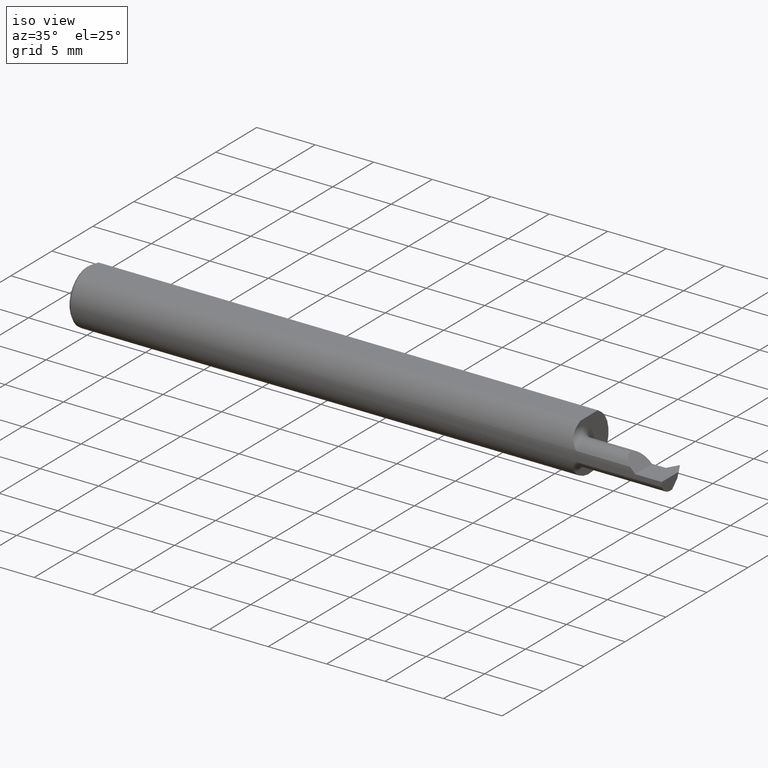
[diagram: clean part render]
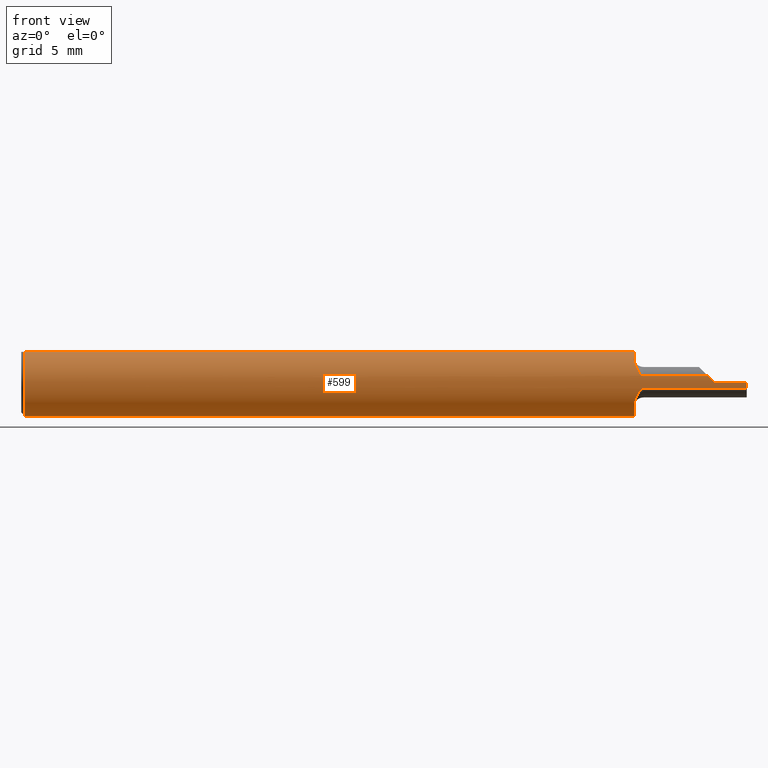
[diagram: tour spotlight — one face highlighted and labeled with its STEP entity id]
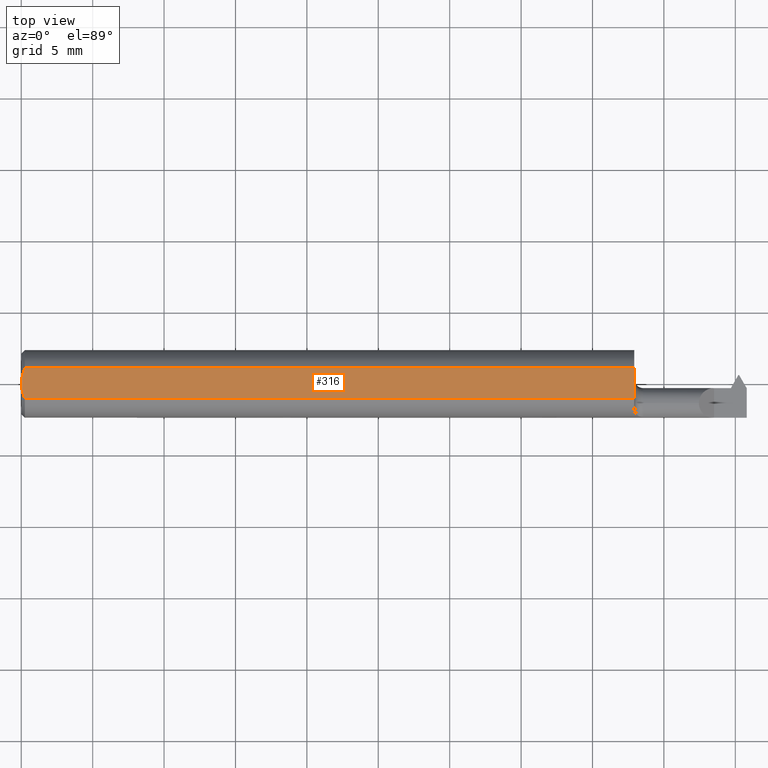
[diagram: tour spotlight — one face highlighted and labeled with its STEP entity id]
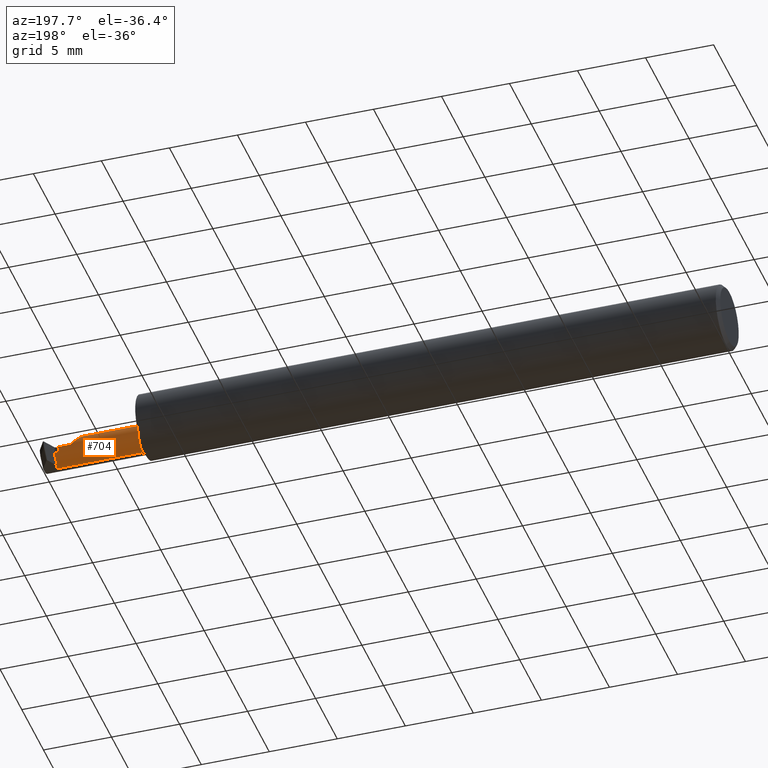
[diagram: tour spotlight — one face highlighted and labeled with its STEP entity id]
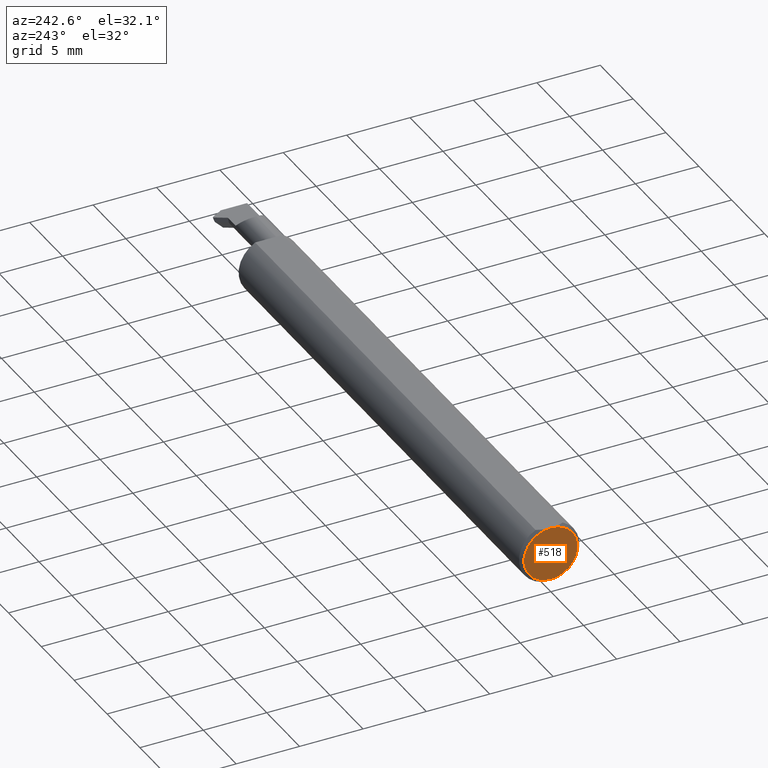
[diagram: tour spotlight — one face highlighted and labeled with its STEP entity id]
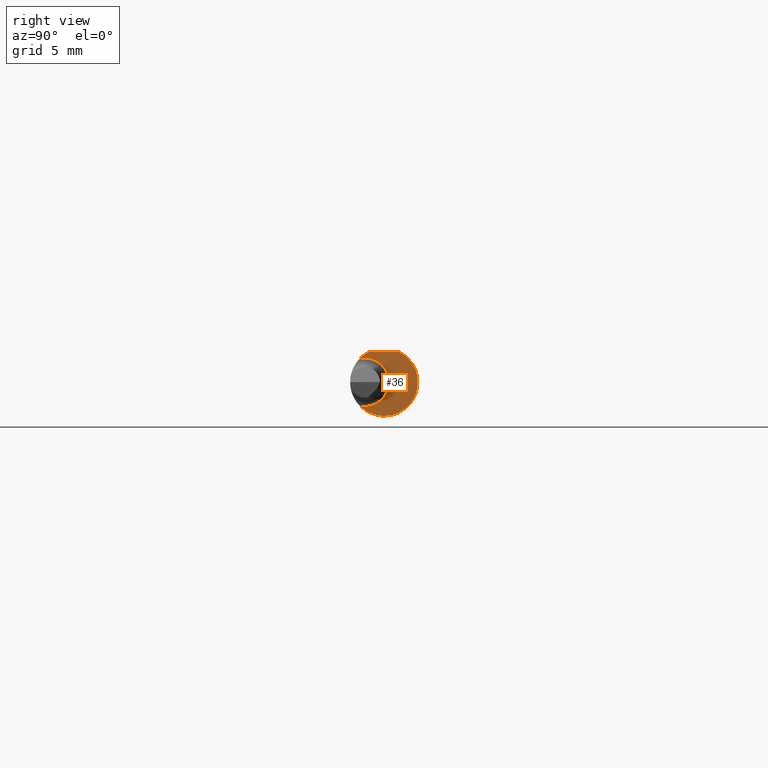
[diagram: tour spotlight — one face highlighted and labeled with its STEP entity id]
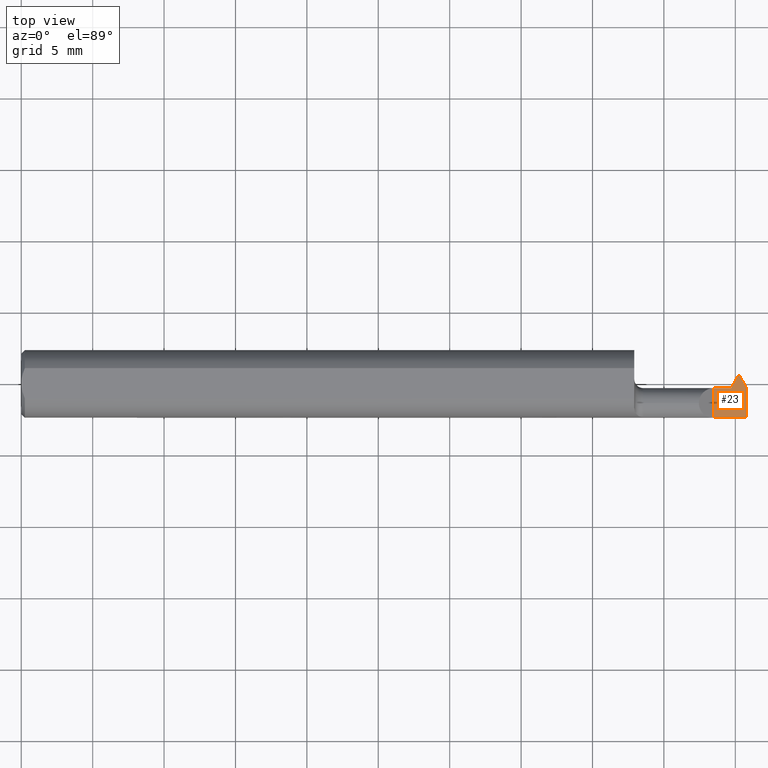
[diagram: tour spotlight — one face highlighted and labeled with its STEP entity id]
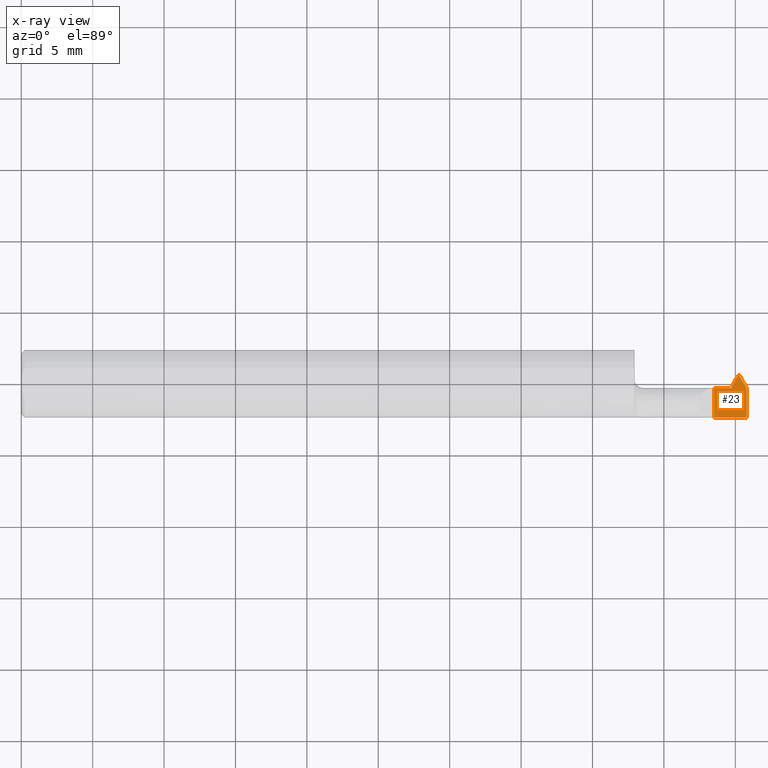
[diagram: x-ray of the same camera — body ghosted, this tour face saturated]
A machine part: a face-by-face anatomy tour. The part has 27 B-rep faces; the first image is the clean iso view, then the 6 largest visible faces are spotlighted one at a time (largest first), each with its STEP entity span.

Face 1 — front view, entity #599. In plain terms, the highlighted cylindrical surface (edge-blend (fillet) strip) has radius 2.3774 mm, axis along (-1, -0, -0).
Definition (entity closure, byte-faithful):
#1 = CARTESIAN_POINT ( 'NONE',  ( 1.690000000000000169, -0.06665037313432835286, -0.06571672360255648160 ) ) ;
#14 = EDGE_CURVE ( 'NONE', #843, #24, #200, .T. ) ;
#15 = CARTESIAN_POINT ( 'NONE',  ( 1.690000000000000169, -0.06665037313432835286, 0.06571672360255648160 ) ) ;
#24 = VERTEX_POINT ( 'NONE', #105 ) ;
#26 = EDGE_CURVE ( 'NONE', #427, #168, #299, .T. ) ;
#31 = CARTESIAN_POINT ( 'NONE',  ( 0.000000000000000000, 0.04209513035969860567, 0.08359999999999989662 ) ) ;
#44 = CARTESIAN_POINT ( 'NONE',  ( 1.706246254951216512, -0.09087486346021449168, 0.02250610835616492084 ) ) ;
#66 = CARTESIAN_POINT ( 'NONE',  ( 1.714999999999999858, -0.09207014925373116498, 0.01685371224376601765 ) ) ;
#67 = CARTESIAN_POINT ( 'NONE',  ( 1.690000000000000169, 0.04209513035969860567, 0.08359999999999989662 ) ) ;
#71 = CARTESIAN_POINT ( 'NONE',  ( 1.833607695154586548, -0.09207014925373123437, 0.01685371224376563948 ) ) ;
#72 = CARTESIAN_POINT ( 'NONE',  ( 0.000000000000000000, -0.04209513035969860567, 0.08359999999999989662 ) ) ;
#76 = CARTESIAN_POINT ( 'NONE',  ( 1.710040276532751813, -0.09170035127622420956, -0.01877567467121209199 ) ) ;
#91 = DIRECTION ( 'NONE',  ( 0.000000000000000000, 0.000000000000000000, 1.000000000000000000 ) ) ;
#93 = DIRECTION ( 'NONE',  ( 1.000000000000000000, 0.000000000000000000, 0.000000000000000000 ) ) ;
#98 = CARTESIAN_POINT ( 'NONE',  ( 2.000000000000000000, 0.000000000000000000, 0.000000000000000000 ) ) ;
#105 = CARTESIAN_POINT ( 'NONE',  ( 2.000000000000000000, -0.09360000000000001652, 0.000000000000000000 ) ) ;
#107 = CARTESIAN_POINT ( 'NONE',  ( 0.009999999999999892655, 0.04209513035969860567, 0.08359999999999989662 ) ) ;
#110 = VECTOR ( 'NONE', #282, 39.37007874015748143 ) ;
#123 = VERTEX_POINT ( 'NONE', #252 ) ;
#124 = CARTESIAN_POINT ( 'NONE',  ( 1.710061339936166824, -0.09170362580915403239, 0.01875949767692880812 ) ) ;
#130 = EDGE_LOOP ( 'NONE', ( #442, #436, #873, #143, #856, #264, #294, #310, #640, #614, #139, #758, #269 ) ) ;
#139 = ORIENTED_EDGE ( 'NONE', *, *, #357, .F. ) ;
#143 = ORIENTED_EDGE ( 'NONE', *, *, #480, .T. ) ;
#146 = CARTESIAN_POINT ( 'NONE',  ( 1.694085356245837781, -0.08239036684830185198, -0.04469806793346458446 ) ) ;
#151 = CARTESIAN_POINT ( 'NONE',  ( 1.709025502329856838, -0.09151353859653628409, -0.01967662315907504206 ) ) ;
#156 = CARTESIAN_POINT ( 'NONE',  ( 1.910000000000000142, -0.09360000000000005815, 1.100475876354012249E-17 ) ) ;
#158 = CARTESIAN_POINT ( 'NONE',  ( 1.697994345349610468, -0.08669318782781049171, -0.03564240466963953385 ) ) ;
#162 = EDGE_CURVE ( 'NONE', #596, #781, #858, .T. ) ;
#166 = LINE ( 'NONE', #71, #231 ) ;
#168 = VERTEX_POINT ( 'NONE', #15 ) ;
#198 = CARTESIAN_POINT ( 'NONE',  ( 1.697959848388075121, -0.08665969772256694459, 0.03571742193933166026 ) ) ;
#200 = CIRCLE ( 'NONE', #509, 0.09360000000000001652 ) ;
#219 = DIRECTION ( 'NONE',  ( -1.000000000000000000, -0.000000000000000000, -0.000000000000000000 ) ) ;
#223 = CARTESIAN_POINT ( 'NONE',  ( 1.690000000000000169, 0.000000000000000000, 0.000000000000000000 ) ) ;
#231 = VECTOR ( 'NONE', #434, 39.37007874015748143 ) ;
#234 = CARTESIAN_POINT ( 'NONE',  ( 1.714999999999999858, -0.09207014925373116498, -0.01685371224376602112 ) ) ;
#238 = DIRECTION ( 'NONE',  ( 0.000000000000000000, 0.000000000000000000, 1.000000000000000000 ) ) ;
#252 = CARTESIAN_POINT ( 'NONE',  ( 0.009999999999999892655, 0.000000000000000000, -0.09360000000000003040 ) ) ;
#259 = EDGE_CURVE ( 'NONE', #685, #427, #278, .T. ) ;
#264 = ORIENTED_EDGE ( 'NONE', *, *, #803, .F. ) ;
#269 = ORIENTED_EDGE ( 'NONE', *, *, #162, .F. ) ;
#276 = CARTESIAN_POINT ( 'NONE',  ( 0.009999999999999892655, 0.000000000000000000, 0.000000000000000000 ) ) ;
#278 = LINE ( 'NONE', #72, #875 ) ;
#282 = DIRECTION ( 'NONE',  ( -1.000000000000000000, -0.000000000000000000, -0.000000000000000000 ) ) ;
#287 = CARTESIAN_POINT ( 'NONE',  ( 1.690000000000000169, -0.07042526556309515462, -0.06188820058547977315 ) ) ;
#290 = EDGE_CURVE ( 'NONE', #843, #596, #698, .T. ) ;
#291 = CARTESIAN_POINT ( 'NONE',  ( 0.000000000000000000, 0.000000000000000000, 0.000000000000000000 ) ) ;
#294 = ORIENTED_EDGE ( 'NONE', *, *, #26, .F. ) ;
#299 = CIRCLE ( 'NONE', #862, 0.09360000000000001652 ) ;
#301 = AXIS2_PLACEMENT_3D ( 'NONE', #223, #864, #700 ) ;
#310 = ORIENTED_EDGE ( 'NONE', *, *, #259, .F. ) ;
#312 = CARTESIAN_POINT ( 'NONE',  ( 1.690000000000000169, -0.06665037313432835286, -0.06571672360255648160 ) ) ;
#326 = CARTESIAN_POINT ( 'NONE',  ( 0.009999999999999892655, -0.04209513035969860567, 0.08359999999999989662 ) ) ;
#331 = CARTESIAN_POINT ( 'NONE',  ( 1.690533642810113868, -0.07379783313327893668, 0.05781434694793456674 ) ) ;
#357 = EDGE_CURVE ( 'NONE', #482, #776, #666, .T. ) ;
#372 = DIRECTION ( 'NONE',  ( 0.000000000000000000, 0.000000000000000000, -1.000000000000000000 ) ) ;
#386 = CARTESIAN_POINT ( 'NONE',  ( 1.690000000000000169, 0.000000000000000000, 0.000000000000000000 ) ) ;
#389 = CARTESIAN_POINT ( 'NONE',  ( 0.009999999999999892655, 0.000000000000000000, 0.000000000000000000 ) ) ;
#404 = CIRCLE ( 'NONE', #736, 0.09360000000000001652 ) ;
#413 = DIRECTION ( 'NONE',  ( 1.000000000000000000, 0.000000000000000000, 0.000000000000000000 ) ) ;
#426 = CARTESIAN_POINT ( 'NONE',  ( 1.692599756579036718, -0.07984340602545494936, -0.04912629365152905436 ) ) ;
#427 = VERTEX_POINT ( 'NONE', #837 ) ;
#434 = DIRECTION ( 'NONE',  ( 1.000000000000000000, 0.000000000000000000, 0.000000000000000000 ) ) ;
#436 = ORIENTED_EDGE ( 'NONE', *, *, #14, .T. ) ;
#442 = ORIENTED_EDGE ( 'NONE', *, *, #290, .F. ) ;
#447 = EDGE_CURVE ( 'NONE', #123, #776, #886, .T. ) ;
#450 = LINE ( 'NONE', #461, #772 ) ;
#455 = B_SPLINE_CURVE_WITH_KNOTS ( 'NONE', 3,
 ( #603, #682, #331, #466, #743, #198, #760, #559, #44, #899, #124, #692, #543, #66 ),
 .UNSPECIFIED., .F., .F.,
 ( 4, 2, 2, 2, 2, 2, 4 ),
 ( 4.596658918362322218E-05, 0.0004513928604953996028, 0.0008568191318071760511, 0.001262245403118952879, 0.001464958538774841293, 0.001566315106602792547, 0.001667671674430743585 ),
 .UNSPECIFIED. ) ;
#457 = VERTEX_POINT ( 'NONE', #683 ) ;
#461 = CARTESIAN_POINT ( 'NONE',  ( 0.000000000000000000, -0.09359999999999998876, 2.449059041195110937E-16 ) ) ;
#463 =( BOUNDED_CURVE ( )  B_SPLINE_CURVE ( 3, ( #556, #891, #773, #479 ),
 .UNSPECIFIED., .F., .T. ) 
 B_SPLINE_CURVE_WITH_KNOTS ( ( 4, 4 ),
 ( 4.712388980384689674, 4.893437473578370778 ),
 .UNSPECIFIED. ) 
 CURVE ( )  GEOMETRIC_REPRESENTATION_ITEM ( )  RATIONAL_B_SPLINE_CURVE ( ( 1.000000000000000000, 0.9972703184196843873, 0.9972703184196843873, 1.000000000000000000 ) ) 
 REPRESENTATION_ITEM ( '' )  );
#466 = CARTESIAN_POINT ( 'NONE',  ( 1.692581066291113823, -0.07980979860428875916, 0.04918348233834507477 ) ) ;
#478 = VECTOR ( 'NONE', #530, 39.37007874015748143 ) ;
#479 = CARTESIAN_POINT ( 'NONE',  ( 1.893146287756234392, -0.09207014925373123437, 0.01685371224376565336 ) ) ;
#480 = EDGE_CURVE ( 'NONE', #510, #457, #463, .T. ) ;
#482 = VERTEX_POINT ( 'NONE', #67 ) ;
#509 = AXIS2_PLACEMENT_3D ( 'NONE', #98, #730, #238 ) ;
#510 = VERTEX_POINT ( 'NONE', #156 ) ;
#514 = FACE_OUTER_BOUND ( 'NONE', #130, .T. ) ;
#530 = DIRECTION ( 'NONE',  ( -1.000000000000000000, -0.000000000000000000, -0.000000000000000000 ) ) ;
#543 = CARTESIAN_POINT ( 'NONE',  ( 1.713637246768939804, -0.09207014925426135199, 0.01685371224087034436 ) ) ;
#546 = CARTESIAN_POINT ( 'NONE',  ( 1.714999999999999858, -0.09207014925373116498, -0.01685371224376602112 ) ) ;
#556 = CARTESIAN_POINT ( 'NONE',  ( 1.910000000000000142, -0.09360000000000005815, 1.100475876354012249E-17 ) ) ;
#557 = DIRECTION ( 'NONE',  ( 1.000000000000000000, 0.000000000000000000, 0.000000000000000000 ) ) ;
#559 = CARTESIAN_POINT ( 'NONE',  ( 1.704680805881167327, -0.09033173497866217594, 0.02462299273440529332 ) ) ;
#596 = VERTEX_POINT ( 'NONE', #234 ) ;
#599 = ADVANCED_FACE ( 'NONE', ( #514 ), #796, .T. ) ;
#603 = CARTESIAN_POINT ( 'NONE',  ( 1.690000000000000169, -0.06665037313432835286, 0.06571672360255648160 ) ) ;
#608 = EDGE_CURVE ( 'NONE', #741, #457, #166, .T. ) ;
#614 = ORIENTED_EDGE ( 'NONE', *, *, #447, .T. ) ;
#634 = CARTESIAN_POINT ( 'NONE',  ( 2.000000000000000000, -0.09207014925373097070, -0.01685371224376563601 ) ) ;
#636 = CARTESIAN_POINT ( 'NONE',  ( 1.690550322316036524, -0.07386771902718251848, -0.05772280571319393649 ) ) ;
#640 = ORIENTED_EDGE ( 'NONE', *, *, #703, .T. ) ;
#641 = EDGE_CURVE ( 'NONE', #781, #482, #696, .T. ) ;
#661 = DIRECTION ( 'NONE',  ( 1.000000000000000000, 0.000000000000000000, 0.000000000000000000 ) ) ;
#664 = CARTESIAN_POINT ( 'NONE',  ( 1.714999999999999858, -0.09207014925373116498, 0.01685371224376601765 ) ) ;
#666 = LINE ( 'NONE', #31, #110 ) ;
#674 = EDGE_CURVE ( 'NONE', #24, #510, #450, .T. ) ;
#682 = CARTESIAN_POINT ( 'NONE',  ( 1.689999999999998836, -0.07042168361208699101, 0.06189183342592224218 ) ) ;
#683 = CARTESIAN_POINT ( 'NONE',  ( 1.893146287756234392, -0.09207014925373123437, 0.01685371224376565336 ) ) ;
#685 = VERTEX_POINT ( 'NONE', #326 ) ;
#692 = CARTESIAN_POINT ( 'NONE',  ( 1.712341178892591298, -0.09198016210675406812, 0.01735291095036456746 ) ) ;
#696 = CIRCLE ( 'NONE', #301, 0.09360000000000001652 ) ;
#698 = LINE ( 'NONE', #801, #478 ) ;
#700 = DIRECTION ( 'NONE',  ( 0.000000000000000000, 0.000000000000000000, -1.000000000000000000 ) ) ;
#701 = CARTESIAN_POINT ( 'NONE',  ( 1.706246460913175333, -0.09087368479272676935, -0.02250960670043058304 ) ) ;
#703 = EDGE_CURVE ( 'NONE', #685, #123, #404, .T. ) ;
#709 = CARTESIAN_POINT ( 'NONE',  ( 1.712324523699173984, -0.09197884972478902188, -0.01736005722475565671 ) ) ;
#730 = DIRECTION ( 'NONE',  ( -1.000000000000000000, -0.000000000000000000, -0.000000000000000000 ) ) ;
#733 = AXIS2_PLACEMENT_3D ( 'NONE', #276, #413, #901 ) ;
#736 = AXIS2_PLACEMENT_3D ( 'NONE', #389, #661, #813 ) ;
#741 = VERTEX_POINT ( 'NONE', #664 ) ;
#743 = CARTESIAN_POINT ( 'NONE',  ( 1.694091173271814910, -0.08239225417103612781, 0.04468952776629343121 ) ) ;
#758 = ORIENTED_EDGE ( 'NONE', *, *, #641, .F. ) ;
#760 = CARTESIAN_POINT ( 'NONE',  ( 1.700323772047401150, -0.08838176252376904463, 0.03114868400121339337 ) ) ;
#772 = VECTOR ( 'NONE', #884, 39.37007874015748143 ) ;
#773 = CARTESIAN_POINT ( 'NONE',  ( 1.898710277283380599, -0.09308865393932075349, 0.01128972271661917749 ) ) ;
#775 = CARTESIAN_POINT ( 'NONE',  ( 1.700331455114174606, -0.08838398833671951005, -0.03113919291468857445 ) ) ;
#776 = VERTEX_POINT ( 'NONE', #107 ) ;
#780 = CARTESIAN_POINT ( 'NONE',  ( 1.704665360541867125, -0.09032542640524104938, -0.02464512177151426120 ) ) ;
#781 = VERTEX_POINT ( 'NONE', #312 ) ;
#790 = CARTESIAN_POINT ( 'NONE',  ( 1.713627452150746633, -0.09207014925373113723, -0.01685371224376602806 ) ) ;
#796 = CYLINDRICAL_SURFACE ( 'NONE', #863, 0.09360000000000001652 ) ;
#801 = CARTESIAN_POINT ( 'NONE',  ( 1.833607695154586548, -0.09207014925373123437, -0.01685371224376563948 ) ) ;
#803 = EDGE_CURVE ( 'NONE', #168, #741, #455, .T. ) ;
#813 = DIRECTION ( 'NONE',  ( 0.000000000000000000, 0.000000000000000000, -1.000000000000000000 ) ) ;
#837 = CARTESIAN_POINT ( 'NONE',  ( 1.690000000000000169, -0.04209513035969860567, 0.08359999999999992437 ) ) ;
#843 = VERTEX_POINT ( 'NONE', #634 ) ;
#856 = ORIENTED_EDGE ( 'NONE', *, *, #608, .F. ) ;
#858 = B_SPLINE_CURVE_WITH_KNOTS ( 'NONE', 3,
 ( #546, #790, #709, #76, #151, #701, #780, #775, #158, #146, #426, #636, #287, #1 ),
 .UNSPECIFIED., .F., .F.,
 ( 4, 2, 2, 2, 2, 2, 4 ),
 ( 1.967287740839821934E-07, 0.0001030870799334179414, 0.0002059774310927519193, 0.0004117581334114347015, 0.0008233195380488120838, 0.001234880942686189141, 0.001646442347323566306 ),
 .UNSPECIFIED. ) ;
#862 = AXIS2_PLACEMENT_3D ( 'NONE', #386, #93, #372 ) ;
#863 = AXIS2_PLACEMENT_3D ( 'NONE', #291, #219, #91 ) ;
#864 = DIRECTION ( 'NONE',  ( 1.000000000000000000, 0.000000000000000000, 0.000000000000000000 ) ) ;
#873 = ORIENTED_EDGE ( 'NONE', *, *, #674, .T. ) ;
#875 = VECTOR ( 'NONE', #557, 39.37007874015748143 ) ;
#884 = DIRECTION ( 'NONE',  ( -1.000000000000000000, -0.000000000000000000, -0.000000000000000000 ) ) ;
#886 = CIRCLE ( 'NONE', #733, 0.09360000000000001652 ) ;
#891 = CARTESIAN_POINT ( 'NONE',  ( 1.904343558428414296, -0.09359999999999998876, 0.005656441571585646769 ) ) ;
#899 = CARTESIAN_POINT ( 'NONE',  ( 1.709051853270285859, -0.09151898401755904910, 0.01965164102476846947 ) ) ;
#901 = DIRECTION ( 'NONE',  ( 0.000000000000000000, 0.000000000000000000, -1.000000000000000000 ) ) ;

Face 2 — top view, entity #316. In plain terms, the highlighted planar face has unit normal (0, 0, 1).
Definition (entity closure, byte-faithful):
#13 = CARTESIAN_POINT ( 'NONE',  ( 0.004072204388638597274, -0.02891446873729323561, 0.08359999999999992437 ) ) ;
#25 = CARTESIAN_POINT ( 'NONE',  ( 0.000000000000000000, 0.000000000000000000, 0.08359999999999992437 ) ) ;
#31 = CARTESIAN_POINT ( 'NONE',  ( 0.000000000000000000, 0.04209513035969860567, 0.08359999999999989662 ) ) ;
#67 = CARTESIAN_POINT ( 'NONE',  ( 1.690000000000000169, 0.04209513035969860567, 0.08359999999999989662 ) ) ;
#72 = CARTESIAN_POINT ( 'NONE',  ( 0.000000000000000000, -0.04209513035969860567, 0.08359999999999989662 ) ) ;
#101 = PLANE ( 'NONE',  #183 ) ;
#107 = CARTESIAN_POINT ( 'NONE',  ( 0.009999999999999892655, 0.04209513035969860567, 0.08359999999999989662 ) ) ;
#110 = VECTOR ( 'NONE', #282, 39.37007874015748143 ) ;
#132 = DIRECTION ( 'NONE',  ( 0.000000000000000000, 1.000000000000000000, 0.000000000000000000 ) ) ;
#181 = ORIENTED_EDGE ( 'NONE', *, *, #357, .T. ) ;
#183 = AXIS2_PLACEMENT_3D ( 'NONE', #243, #462, #738 ) ;
#185 = FACE_OUTER_BOUND ( 'NONE', #570, .T. ) ;
#196 = ORIENTED_EDGE ( 'NONE', *, *, #571, .F. ) ;
#236 = VERTEX_POINT ( 'NONE', #499 ) ;
#243 = CARTESIAN_POINT ( 'NONE',  ( 2.191425808082400728, 0.09360000000000001652, 0.08359999999999992437 ) ) ;
#259 = EDGE_CURVE ( 'NONE', #685, #427, #278, .T. ) ;
#261 = CARTESIAN_POINT ( 'NONE',  ( 1.690000000000000169, 0.09360000000000001652, 0.08359999999999992437 ) ) ;
#278 = LINE ( 'NONE', #72, #875 ) ;
#282 = DIRECTION ( 'NONE',  ( -1.000000000000000000, -0.000000000000000000, -0.000000000000000000 ) ) ;
#283 = ORIENTED_EDGE ( 'NONE', *, *, #259, .T. ) ;
#295 = CARTESIAN_POINT ( 'NONE',  ( 0.000000000000000000, 0.000000000000000000, 0.08359999999999992437 ) ) ;
#316 = ADVANCED_FACE ( 'NONE', ( #185 ), #101, .T. ) ;
#321 = ORIENTED_EDGE ( 'NONE', *, *, #739, .F. ) ;
#326 = CARTESIAN_POINT ( 'NONE',  ( 0.009999999999999892655, -0.04209513035969860567, 0.08359999999999989662 ) ) ;
#337 = LINE ( 'NONE', #261, #349 ) ;
#349 = VECTOR ( 'NONE', #132, 39.37007874015748143 ) ;
#357 = EDGE_CURVE ( 'NONE', #482, #776, #666, .T. ) ;
#427 = VERTEX_POINT ( 'NONE', #837 ) ;
#446 = B_SPLINE_CURVE_WITH_KNOTS ( 'NONE', 3,
 ( #25, #453, #737, #658, #672, #529 ),
 .UNSPECIFIED., .F., .F.,
 ( 4, 2, 4 ),
 ( 0.001744210492668867886, 0.002295110172257196733, 0.002846009851845525580 ),
 .UNSPECIFIED. ) ;
#453 = CARTESIAN_POINT ( 'NONE',  ( -2.338761345405992312E-16, 0.007317304829308923786, 0.08359999999999995213 ) ) ;
#462 = DIRECTION ( 'NONE',  ( 0.000000000000000000, 0.000000000000000000, 1.000000000000000000 ) ) ;
#482 = VERTEX_POINT ( 'NONE', #67 ) ;
#499 = CARTESIAN_POINT ( 'NONE',  ( 0.000000000000000000, 0.000000000000000000, 0.08359999999999992437 ) ) ;
#506 = CARTESIAN_POINT ( 'NONE',  ( 0.009999999999999892655, -0.04209513035969860567, 0.08359999999999989662 ) ) ;
#529 = CARTESIAN_POINT ( 'NONE',  ( 0.009999999999999892655, 0.04209513035969860567, 0.08359999999999989662 ) ) ;
#557 = DIRECTION ( 'NONE',  ( 1.000000000000000000, 0.000000000000000000, 0.000000000000000000 ) ) ;
#570 = EDGE_LOOP ( 'NONE', ( #283, #645, #181, #321, #196 ) ) ;
#571 = EDGE_CURVE ( 'NONE', #685, #236, #724, .T. ) ;
#642 = CARTESIAN_POINT ( 'NONE',  ( -2.280599306565652977E-16, -0.01462709520273674721, 0.08359999999999992437 ) ) ;
#645 = ORIENTED_EDGE ( 'NONE', *, *, #911, .T. ) ;
#658 = CARTESIAN_POINT ( 'NONE',  ( 0.004492168231814545366, 0.02859366993844193044, 0.08359999999999991049 ) ) ;
#666 = LINE ( 'NONE', #31, #110 ) ;
#672 = CARTESIAN_POINT ( 'NONE',  ( 0.007036739039485571251, 0.03550621559607058247, 0.08359999999999992437 ) ) ;
#685 = VERTEX_POINT ( 'NONE', #326 ) ;
#724 = B_SPLINE_CURVE_WITH_KNOTS ( 'NONE', 3,
 ( #506, #13, #642, #295 ),
 .UNSPECIFIED., .F., .F.,
 ( 4, 4 ),
 ( 0.0006429768761302142406, 0.001744210492668867886 ),
 .UNSPECIFIED. ) ;
#737 = CARTESIAN_POINT ( 'NONE',  ( 0.0009807498324116046499, 0.01453516766257752224, 0.08359999999999992437 ) ) ;
#738 = DIRECTION ( 'NONE',  ( 1.000000000000000000, 0.000000000000000000, -0.000000000000000000 ) ) ;
#739 = EDGE_CURVE ( 'NONE', #236, #776, #446, .T. ) ;
#776 = VERTEX_POINT ( 'NONE', #107 ) ;
#837 = CARTESIAN_POINT ( 'NONE',  ( 1.690000000000000169, -0.04209513035969860567, 0.08359999999999992437 ) ) ;
#875 = VECTOR ( 'NONE', #557, 39.37007874015748143 ) ;
#911 = EDGE_CURVE ( 'NONE', #427, #482, #337, .T. ) ;

Face 3 — auxiliary view, entity #704. In plain terms, the highlighted cylindrical surface (edge-blend (fillet) strip) has radius 1.0668 mm, axis along (-1, -0, -0).
Definition (entity closure, byte-faithful):
#4 = ORIENTED_EDGE ( 'NONE', *, *, #176, .T. ) ;
#27 = VERTEX_POINT ( 'NONE', #235 ) ;
#35 = CARTESIAN_POINT ( 'NONE',  ( 1.867999999999999217, -0.02899696961966997250, 0.04200000000000013445 ) ) ;
#38 = ORIENTED_EDGE ( 'NONE', *, *, #342, .F. ) ;
#43 = ORIENTED_EDGE ( 'NONE', *, *, #665, .F. ) ;
#53 = EDGE_CURVE ( 'NONE', #387, #424, #160, .T. ) ;
#54 = VERTEX_POINT ( 'NONE', #679 ) ;
#60 = CARTESIAN_POINT ( 'NONE',  ( 1.958065731429537326, -0.01495149155541251711, -0.01645920567192169295 ) ) ;
#61 = LINE ( 'NONE', #405, #817 ) ;
#79 = AXIS2_PLACEMENT_3D ( 'NONE', #137, #141, #214 ) ;
#85 = EDGE_CURVE ( 'NONE', #230, #504, #791, .T. ) ;
#97 = EDGE_CURVE ( 'NONE', #135, #653, #61, .T. ) ;
#103 = CARTESIAN_POINT ( 'NONE',  ( 1.867999999999999661, -0.05360000000000004344, 0.04200000000000012751 ) ) ;
#122 = CARTESIAN_POINT ( 'NONE',  ( 1.946164006060341789, -0.01159999999999991940, -0.005408903059652859537 ) ) ;
#128 = CARTESIAN_POINT ( 'NONE',  ( 1.945131938701440300, -0.01263206735890140542, -0.01071842933564135132 ) ) ;
#129 = VECTOR ( 'NONE', #687, 39.37007874015748143 ) ;
#135 = VERTEX_POINT ( 'NONE', #740 ) ;
#137 = CARTESIAN_POINT ( 'NONE',  ( 1.958123224213872859, -0.05360000000000004344, 0.000000000000000000 ) ) ;
#141 = DIRECTION ( 'NONE',  ( -1.000000000000000000, -0.000000000000000000, -0.000000000000000000 ) ) ;
#142 = CARTESIAN_POINT ( 'NONE',  ( 1.958160445373316572, -0.01548700727932105295, -0.01764701096325278426 ) ) ;
#154 = AXIS2_PLACEMENT_3D ( 'NONE', #728, #885, #397 ) ;
#160 =( BOUNDED_CURVE ( )  B_SPLINE_CURVE ( 3, ( #689, #763, #531, #414 ),
 .UNSPECIFIED., .F., .F. ) 
 B_SPLINE_CURVE_WITH_KNOTS ( ( 4, 4 ),
 ( 2.786698003918578248, 3.036865397300280378 ),
 .UNSPECIFIED. ) 
 CURVE ( )  GEOMETRIC_REPRESENTATION_ITEM ( )  RATIONAL_B_SPLINE_CURVE ( ( 1.000000000000000000, 0.9947914859276562050, 0.9947914859276562050, 1.000000000000000000 ) ) 
 REPRESENTATION_ITEM ( '' )  );
#171 = CARTESIAN_POINT ( 'NONE',  ( 1.957981087998196923, -0.01465827810819480582, -0.01573347692346801011 ) ) ;
#176 = EDGE_CURVE ( 'NONE', #27, #54, #279, .T. ) ;
#184 =( BOUNDED_CURVE ( )  B_SPLINE_CURVE ( 3, ( #271, #338, #60, #629 ),
 .UNSPECIFIED., .F., .F. ) 
 B_SPLINE_CURVE_WITH_KNOTS ( ( 4, 4 ),
 ( 4.464501209210057553, 4.520402762665321816 ),
 .UNSPECIFIED. ) 
 CURVE ( )  GEOMETRIC_REPRESENTATION_ITEM ( )  RATIONAL_B_SPLINE_CURVE ( ( 1.000000000000000000, 0.9997396016470321278, 0.9997396016470321278, 1.000000000000000000 ) ) 
 REPRESENTATION_ITEM ( '' )  );
#187 = EDGE_LOOP ( 'NONE', ( #904, #217, #38, #344, #726, #300, #719, #43, #323, #4, #249, #633 ) ) ;
#188 = CARTESIAN_POINT ( 'NONE',  ( 1.961640102722212120, -0.05360000000000004344, -0.04200000000000008588 ) ) ;
#195 = CARTESIAN_POINT ( 'NONE',  ( 1.947215390309172900, -0.01159999999999992634, 0.000000000000000000 ) ) ;
#214 = DIRECTION ( 'NONE',  ( 0.000000000000000000, 2.642412493871675111E-15, -1.000000000000000000 ) ) ;
#217 = ORIENTED_EDGE ( 'NONE', *, *, #900, .T. ) ;
#228 = CARTESIAN_POINT ( 'NONE',  ( 1.958233473925546475, -0.01559817617613182966, -0.01788466902292853641 ) ) ;
#230 = VERTEX_POINT ( 'NONE', #435 ) ;
#232 = CARTESIAN_POINT ( 'NONE',  ( 1.689999999999999947, -0.01465827810819489777, -0.01573347692346844379 ) ) ;
#235 = CARTESIAN_POINT ( 'NONE',  ( 1.958233473925546475, -0.01559817617613182966, -0.01788466902292853641 ) ) ;
#237 = DIRECTION ( 'NONE',  ( 1.000000000000000000, 0.000000000000000000, 0.000000000000000000 ) ) ;
#249 = ORIENTED_EDGE ( 'NONE', *, *, #441, .T. ) ;
#251 =( BOUNDED_CURVE ( )  B_SPLINE_CURVE ( 3, ( #103, #35, #534, #722 ),
 .UNSPECIFIED., .F., .T. ) 
 B_SPLINE_CURVE_WITH_KNOTS ( ( 4, 4 ),
 ( 0.000000000000000000, 1.570796326794896114 ),
 .UNSPECIFIED. ) 
 CURVE ( )  GEOMETRIC_REPRESENTATION_ITEM ( )  RATIONAL_B_SPLINE_CURVE ( ( 1.000000000000000000, 0.8047378541243650485, 0.8047378541243650485, 1.000000000000000000 ) ) 
 REPRESENTATION_ITEM ( '' )  );
#255 = CARTESIAN_POINT ( 'NONE',  ( 1.689999999999999947, -0.05360000000000004344, 0.000000000000000000 ) ) ;
#271 = CARTESIAN_POINT ( 'NONE',  ( 1.958233473925546475, -0.01559817617613182966, -0.01788466902292853641 ) ) ;
#279 =( BOUNDED_CURVE ( )  B_SPLINE_CURVE ( 3, ( #228, #846, #142, #296 ),
 .UNSPECIFIED., .F., .T. ) 
 B_SPLINE_CURVE_WITH_KNOTS ( ( 4, 4 ),
 ( 3.487116828093230314, 3.496487303261008428 ),
 .UNSPECIFIED. ) 
 CURVE ( )  GEOMETRIC_REPRESENTATION_ITEM ( )  RATIONAL_B_SPLINE_CURVE ( ( 1.000000000000000000, 0.9999926828629792652, 0.9999926828629792652, 1.000000000000000000 ) ) 
 REPRESENTATION_ITEM ( '' )  );
#296 = CARTESIAN_POINT ( 'NONE',  ( 1.958123224213872859, -0.01543225915984473146, -0.01752779390450338523 ) ) ;
#300 = ORIENTED_EDGE ( 'NONE', *, *, #777, .T. ) ;
#307 = DIRECTION ( 'NONE',  ( 0.000000000000000000, 0.000000000000000000, 1.000000000000000000 ) ) ;
#323 = ORIENTED_EDGE ( 'NONE', *, *, #473, .F. ) ;
#338 = CARTESIAN_POINT ( 'NONE',  ( 1.958149881984653451, -0.01526487251527738551, -0.01717645647600322609 ) ) ;
#339 = DIRECTION ( 'NONE',  ( -1.000000000000000000, -0.000000000000000000, -0.000000000000000000 ) ) ;
#342 = EDGE_CURVE ( 'NONE', #653, #651, #590, .T. ) ;
#344 = ORIENTED_EDGE ( 'NONE', *, *, #97, .F. ) ;
#345 = CARTESIAN_POINT ( 'NONE',  ( 1.960072361890374815, -0.02716878841581243237, -0.03264032864711860493 ) ) ;
#369 = CARTESIAN_POINT ( 'NONE',  ( 1.714999999999999858, -0.05360000000000003650, -0.04200000000000021078 ) ) ;
#380 = CARTESIAN_POINT ( 'NONE',  ( 1.689999999999999947, -0.01159999999999992634, 3.794974385729897042E-17 ) ) ;
#383 = DIRECTION ( 'NONE',  ( -1.000000000000000000, -0.000000000000000000, -0.000000000000000000 ) ) ;
#387 = VERTEX_POINT ( 'NONE', #537 ) ;
#390 = AXIS2_PLACEMENT_3D ( 'NONE', #255, #383, #307 ) ;
#396 = CARTESIAN_POINT ( 'NONE',  ( 1.910000000000000142, -0.01159999999999992634, 3.794974385729897042E-17 ) ) ;
#397 = DIRECTION ( 'NONE',  ( 0.000000000000000000, 0.000000000000000000, 1.000000000000000000 ) ) ;
#405 = CARTESIAN_POINT ( 'NONE',  ( 1.689999999999999947, -0.05360000000000004344, 0.04200000000000012751 ) ) ;
#414 = CARTESIAN_POINT ( 'NONE',  ( 1.960072361890374815, -0.02716878841581243237, -0.03264032864711860493 ) ) ;
#422 = CARTESIAN_POINT ( 'NONE',  ( 1.960072361890374815, -0.02716878841581243237, -0.03264032864711860493 ) ) ;
#424 = VERTEX_POINT ( 'NONE', #422 ) ;
#435 = CARTESIAN_POINT ( 'NONE',  ( 1.944157112200977977, -0.01465827810819488389, -0.01573347692346841256 ) ) ;
#438 = LINE ( 'NONE', #232, #804 ) ;
#441 = EDGE_CURVE ( 'NONE', #54, #387, #521, .T. ) ;
#445 = LINE ( 'NONE', #380, #835 ) ;
#470 = CARTESIAN_POINT ( 'NONE',  ( 1.689999999999999947, -0.05360000000000003650, -0.04200000000000012751 ) ) ;
#473 = EDGE_CURVE ( 'NONE', #27, #734, #184, .T. ) ;
#484 = CARTESIAN_POINT ( 'NONE',  ( 1.960892469047972320, -0.03472121277308233556, -0.03875606750252984234 ) ) ;
#502 = CARTESIAN_POINT ( 'NONE',  ( 1.714999999999999858, -0.05360000000000004344, 0.04200000000000021078 ) ) ;
#504 = VERTEX_POINT ( 'NONE', #749 ) ;
#512 = DIRECTION ( 'NONE',  ( -1.000000000000000000, -0.000000000000000000, -0.000000000000000000 ) ) ;
#519 = FACE_OUTER_BOUND ( 'NONE', #187, .T. ) ;
#521 = CIRCLE ( 'NONE', #79, 0.04200000000000012751 ) ;
#531 = CARTESIAN_POINT ( 'NONE',  ( 1.959772643405777615, -0.02989775884994143665, -0.03485017143795784977 ) ) ;
#534 = CARTESIAN_POINT ( 'NONE',  ( 1.885396969619669960, -0.01159999999999993155, 0.02460303038033009523 ) ) ;
#537 = CARTESIAN_POINT ( 'NONE',  ( 1.958123224213872859, -0.03607220609549650209, -0.03816774084015524260 ) ) ;
#590 = CIRCLE ( 'NONE', #154, 0.04200000000000021078 ) ;
#629 = CARTESIAN_POINT ( 'NONE',  ( 1.957981087998196923, -0.01465827810819480582, -0.01573347692346801011 ) ) ;
#633 = ORIENTED_EDGE ( 'NONE', *, *, #53, .T. ) ;
#651 = VERTEX_POINT ( 'NONE', #369 ) ;
#653 = VERTEX_POINT ( 'NONE', #502 ) ;
#665 = EDGE_CURVE ( 'NONE', #734, #230, #438, .T. ) ;
#677 = CARTESIAN_POINT ( 'NONE',  ( 1.961435826313443043, -0.04388190474321898571, -0.04200000000000013445 ) ) ;
#679 = CARTESIAN_POINT ( 'NONE',  ( 1.958123224213872859, -0.01543225915984473146, -0.01752779390450338523 ) ) ;
#687 = DIRECTION ( 'NONE',  ( -1.000000000000000000, -0.000000000000000000, -0.000000000000000000 ) ) ;
#689 = CARTESIAN_POINT ( 'NONE',  ( 1.958123224213872859, -0.03607220609549650209, -0.03816774084015524260 ) ) ;
#694 = CARTESIAN_POINT ( 'NONE',  ( 1.944157112200977977, -0.01465827810819488389, -0.01573347692346841256 ) ) ;
#704 = ADVANCED_FACE ( 'NONE', ( #519 ), #878, .T. ) ;
#719 = ORIENTED_EDGE ( 'NONE', *, *, #85, .F. ) ;
#722 = CARTESIAN_POINT ( 'NONE',  ( 1.910000000000000142, -0.01159999999999992634, 3.794974385729897042E-17 ) ) ;
#725 = EDGE_CURVE ( 'NONE', #135, #828, #251, .T. ) ;
#726 = ORIENTED_EDGE ( 'NONE', *, *, #725, .T. ) ;
#728 = CARTESIAN_POINT ( 'NONE',  ( 1.714999999999999858, -0.05360000000000004344, 0.000000000000000000 ) ) ;
#734 = VERTEX_POINT ( 'NONE', #171 ) ;
#740 = CARTESIAN_POINT ( 'NONE',  ( 1.867999999999999661, -0.05360000000000004344, 0.04200000000000012751 ) ) ;
#749 = CARTESIAN_POINT ( 'NONE',  ( 1.947215390309172900, -0.01159999999999992634, 0.000000000000000000 ) ) ;
#763 = CARTESIAN_POINT ( 'NONE',  ( 1.959119529091848610, -0.03288110353594918267, -0.03670228894909043776 ) ) ;
#777 = EDGE_CURVE ( 'NONE', #828, #504, #445, .T. ) ;
#779 =( BOUNDED_CURVE ( )  B_SPLINE_CURVE ( 3, ( #188, #677, #484, #345 ),
 .UNSPECIFIED., .F., .T. ) 
 B_SPLINE_CURVE_WITH_KNOTS ( ( 4, 4 ),
 ( 3.333578871309169855, 4.014249778417106285 ),
 .UNSPECIFIED. ) 
 CURVE ( )  GEOMETRIC_REPRESENTATION_ITEM ( )  RATIONAL_B_SPLINE_CURVE ( ( 1.000000000000000000, 0.9617618287043484537, 0.9617618287043484537, 1.000000000000000000 ) ) 
 REPRESENTATION_ITEM ( '' )  );
#791 =( BOUNDED_CURVE ( )  B_SPLINE_CURVE ( 3, ( #694, #128, #122, #195 ),
 .UNSPECIFIED., .F., .T. ) 
 B_SPLINE_CURVE_WITH_KNOTS ( ( 4, 4 ),
 ( 1.186823891356143301, 1.570796326794896780 ),
 .UNSPECIFIED. ) 
 CURVE ( )  GEOMETRIC_REPRESENTATION_ITEM ( )  RATIONAL_B_SPLINE_CURVE ( ( 1.000000000000000000, 0.9877514556317757988, 0.9877514556317757988, 1.000000000000000000 ) ) 
 REPRESENTATION_ITEM ( '' )  );
#804 = VECTOR ( 'NONE', #512, 39.37007874015748143 ) ;
#817 = VECTOR ( 'NONE', #339, 39.37007874015748143 ) ;
#828 = VERTEX_POINT ( 'NONE', #396 ) ;
#835 = VECTOR ( 'NONE', #237, 39.37007874015748143 ) ;
#838 = EDGE_CURVE ( 'NONE', #865, #424, #779, .T. ) ;
#846 = CARTESIAN_POINT ( 'NONE',  ( 1.958197195546113711, -0.01554231335609893710, -0.01776597020650222403 ) ) ;
#865 = VERTEX_POINT ( 'NONE', #907 ) ;
#878 = CYLINDRICAL_SURFACE ( 'NONE', #390, 0.04200000000000012751 ) ;
#885 = DIRECTION ( 'NONE',  ( -1.000000000000000000, -0.000000000000000000, -0.000000000000000000 ) ) ;
#890 = LINE ( 'NONE', #470, #129 ) ;
#900 = EDGE_CURVE ( 'NONE', #865, #651, #890, .T. ) ;
#904 = ORIENTED_EDGE ( 'NONE', *, *, #838, .F. ) ;
#907 = CARTESIAN_POINT ( 'NONE',  ( 1.961640102722212120, -0.05360000000000004344, -0.04200000000000008588 ) ) ;

Face 4 — auxiliary view, entity #518. In plain terms, the highlighted planar face has unit normal (1, 0, 0).
Definition (entity closure, byte-faithful):
#84 = ORIENTED_EDGE ( 'NONE', *, *, #774, .T. ) ;
#159 = ORIENTED_EDGE ( 'NONE', *, *, #848, .T. ) ;
#180 = EDGE_LOOP ( 'NONE', ( #84, #159 ) ) ;
#236 = VERTEX_POINT ( 'NONE', #499 ) ;
#286 = FACE_OUTER_BOUND ( 'NONE', #180, .T. ) ;
#318 = DIRECTION ( 'NONE',  ( -1.000000000000000000, -0.000000000000000000, -0.000000000000000000 ) ) ;
#353 = DIRECTION ( 'NONE',  ( 0.000000000000000000, 0.000000000000000000, -1.000000000000000000 ) ) ;
#392 = CARTESIAN_POINT ( 'NONE',  ( 0.000000000000000000, 0.000000000000000000, 0.000000000000000000 ) ) ;
#425 = PLANE ( 'NONE',  #669 ) ;
#428 = DIRECTION ( 'NONE',  ( 0.000000000000000000, 0.000000000000000000, -1.000000000000000000 ) ) ;
#499 = CARTESIAN_POINT ( 'NONE',  ( 0.000000000000000000, 0.000000000000000000, 0.08359999999999992437 ) ) ;
#511 = CIRCLE ( 'NONE', #592, 0.08360000000000017417 ) ;
#518 = ADVANCED_FACE ( 'NONE', ( #286 ), #425, .F. ) ;
#581 = DIRECTION ( 'NONE',  ( 1.000000000000000000, 0.000000000000000000, 0.000000000000000000 ) ) ;
#592 = AXIS2_PLACEMENT_3D ( 'NONE', #830, #836, #353 ) ;
#669 = AXIS2_PLACEMENT_3D ( 'NONE', #783, #581, #428 ) ;
#690 = VERTEX_POINT ( 'NONE', #731 ) ;
#718 = CIRCLE ( 'NONE', #789, 0.08360000000000017417 ) ;
#731 = CARTESIAN_POINT ( 'NONE',  ( 0.000000000000000000, 0.000000000000000000, -0.08360000000000017417 ) ) ;
#774 = EDGE_CURVE ( 'NONE', #236, #690, #718, .T. ) ;
#783 = CARTESIAN_POINT ( 'NONE',  ( 0.000000000000000000, 0.000000000000000000, 0.000000000000000000 ) ) ;
#789 = AXIS2_PLACEMENT_3D ( 'NONE', #392, #318, #869 ) ;
#830 = CARTESIAN_POINT ( 'NONE',  ( 0.000000000000000000, 0.000000000000000000, 0.000000000000000000 ) ) ;
#836 = DIRECTION ( 'NONE',  ( -1.000000000000000000, -0.000000000000000000, -0.000000000000000000 ) ) ;
#848 = EDGE_CURVE ( 'NONE', #690, #236, #511, .T. ) ;
#869 = DIRECTION ( 'NONE',  ( 0.000000000000000000, 0.000000000000000000, -1.000000000000000000 ) ) ;

Face 5 — right view, entity #36. In plain terms, the highlighted planar face has unit normal (1, 0, 0).
Definition (entity closure, byte-faithful):
#15 = CARTESIAN_POINT ( 'NONE',  ( 1.690000000000000169, -0.06665037313432835286, 0.06571672360255648160 ) ) ;
#26 = EDGE_CURVE ( 'NONE', #427, #168, #299, .T. ) ;
#34 = PLANE ( 'NONE',  #108 ) ;
#36 = ADVANCED_FACE ( 'NONE', ( #810 ), #34, .T. ) ;
#57 = DIRECTION ( 'NONE',  ( 0.000000000000000000, 0.000000000000000000, -1.000000000000000000 ) ) ;
#67 = CARTESIAN_POINT ( 'NONE',  ( 1.690000000000000169, 0.04209513035969860567, 0.08359999999999989662 ) ) ;
#93 = DIRECTION ( 'NONE',  ( 1.000000000000000000, 0.000000000000000000, 0.000000000000000000 ) ) ;
#96 = AXIS2_PLACEMENT_3D ( 'NONE', #567, #358, #638 ) ;
#108 = AXIS2_PLACEMENT_3D ( 'NONE', #819, #208, #57 ) ;
#111 = AXIS2_PLACEMENT_3D ( 'NONE', #275, #555, #412 ) ;
#118 = ORIENTED_EDGE ( 'NONE', *, *, #222, .T. ) ;
#127 = CIRCLE ( 'NONE', #905, 0.06700000000000001787 ) ;
#132 = DIRECTION ( 'NONE',  ( 0.000000000000000000, 1.000000000000000000, 0.000000000000000000 ) ) ;
#168 = VERTEX_POINT ( 'NONE', #15 ) ;
#208 = DIRECTION ( 'NONE',  ( 1.000000000000000000, 0.000000000000000000, 0.000000000000000000 ) ) ;
#222 = EDGE_CURVE ( 'NONE', #432, #889, #127, .T. ) ;
#223 = CARTESIAN_POINT ( 'NONE',  ( 1.690000000000000169, 0.000000000000000000, 0.000000000000000000 ) ) ;
#261 = CARTESIAN_POINT ( 'NONE',  ( 1.690000000000000169, 0.09360000000000001652, 0.08359999999999992437 ) ) ;
#275 = CARTESIAN_POINT ( 'NONE',  ( 1.690000000000000169, -0.05360000000000004344, 0.000000000000000000 ) ) ;
#299 = CIRCLE ( 'NONE', #862, 0.09360000000000001652 ) ;
#301 = AXIS2_PLACEMENT_3D ( 'NONE', #223, #864, #700 ) ;
#312 = CARTESIAN_POINT ( 'NONE',  ( 1.690000000000000169, -0.06665037313432835286, -0.06571672360255648160 ) ) ;
#320 = ORIENTED_EDGE ( 'NONE', *, *, #26, .T. ) ;
#337 = LINE ( 'NONE', #261, #349 ) ;
#349 = VECTOR ( 'NONE', #132, 39.37007874015748143 ) ;
#351 = ORIENTED_EDGE ( 'NONE', *, *, #911, .F. ) ;
#358 = DIRECTION ( 'NONE',  ( -1.000000000000000000, -0.000000000000000000, -0.000000000000000000 ) ) ;
#360 = EDGE_LOOP ( 'NONE', ( #660, #351, #320, #792, #118, #394 ) ) ;
#372 = DIRECTION ( 'NONE',  ( 0.000000000000000000, 0.000000000000000000, -1.000000000000000000 ) ) ;
#386 = CARTESIAN_POINT ( 'NONE',  ( 1.690000000000000169, 0.000000000000000000, 0.000000000000000000 ) ) ;
#394 = ORIENTED_EDGE ( 'NONE', *, *, #646, .T. ) ;
#412 = DIRECTION ( 'NONE',  ( 0.000000000000000000, 0.000000000000000000, 1.000000000000000000 ) ) ;
#427 = VERTEX_POINT ( 'NONE', #837 ) ;
#432 = VERTEX_POINT ( 'NONE', #635 ) ;
#482 = VERTEX_POINT ( 'NONE', #67 ) ;
#496 = DIRECTION ( 'NONE',  ( 0.000000000000000000, 0.000000000000000000, 1.000000000000000000 ) ) ;
#503 = DIRECTION ( 'NONE',  ( -1.000000000000000000, -0.000000000000000000, -0.000000000000000000 ) ) ;
#555 = DIRECTION ( 'NONE',  ( -1.000000000000000000, -0.000000000000000000, -0.000000000000000000 ) ) ;
#565 = CARTESIAN_POINT ( 'NONE',  ( 1.690000000000000169, -0.05360000000000004344, 0.000000000000000000 ) ) ;
#567 = CARTESIAN_POINT ( 'NONE',  ( 1.690000000000000169, -0.05360000000000004344, 0.000000000000000000 ) ) ;
#635 = CARTESIAN_POINT ( 'NONE',  ( 1.690000000000000169, -0.05360000000000004344, 0.06700000000000001787 ) ) ;
#638 = DIRECTION ( 'NONE',  ( 0.000000000000000000, 0.000000000000000000, 1.000000000000000000 ) ) ;
#641 = EDGE_CURVE ( 'NONE', #781, #482, #696, .T. ) ;
#646 = EDGE_CURVE ( 'NONE', #889, #781, #818, .T. ) ;
#660 = ORIENTED_EDGE ( 'NONE', *, *, #641, .T. ) ;
#696 = CIRCLE ( 'NONE', #301, 0.09360000000000001652 ) ;
#700 = DIRECTION ( 'NONE',  ( 0.000000000000000000, 0.000000000000000000, -1.000000000000000000 ) ) ;
#781 = VERTEX_POINT ( 'NONE', #312 ) ;
#792 = ORIENTED_EDGE ( 'NONE', *, *, #870, .T. ) ;
#810 = FACE_OUTER_BOUND ( 'NONE', #360, .T. ) ;
#818 = CIRCLE ( 'NONE', #96, 0.06700000000000001787 ) ;
#819 = CARTESIAN_POINT ( 'NONE',  ( 1.690000000000000169, 0.09359999999999997489, 0.000000000000000000 ) ) ;
#825 = CARTESIAN_POINT ( 'NONE',  ( 1.690000000000000169, -0.05360000000000003650, -0.06700000000000001787 ) ) ;
#837 = CARTESIAN_POINT ( 'NONE',  ( 1.690000000000000169, -0.04209513035969860567, 0.08359999999999992437 ) ) ;
#862 = AXIS2_PLACEMENT_3D ( 'NONE', #386, #93, #372 ) ;
#864 = DIRECTION ( 'NONE',  ( 1.000000000000000000, 0.000000000000000000, 0.000000000000000000 ) ) ;
#870 = EDGE_CURVE ( 'NONE', #168, #432, #888, .T. ) ;
#888 = CIRCLE ( 'NONE', #111, 0.06700000000000001787 ) ;
#889 = VERTEX_POINT ( 'NONE', #825 ) ;
#905 = AXIS2_PLACEMENT_3D ( 'NONE', #565, #503, #496 ) ;
#911 = EDGE_CURVE ( 'NONE', #427, #482, #337, .T. ) ;

Face 6 — top view, entity #23. An x-ray twin of the same camera follows (body ghosted, this face saturated) — the face is partly hidden behind the body. In plain terms, the highlighted planar face has unit normal (-0, 0, -1).
Definition (entity closure, byte-faithful):
#23 = ADVANCED_FACE ( 'NONE', ( #516 ), #391, .F. ) ;
#24 = VERTEX_POINT ( 'NONE', #105 ) ;
#41 = CARTESIAN_POINT ( 'NONE',  ( 1.956215390309173907, -0.01159999999999992634, 0.000000000000000000 ) ) ;
#48 = VERTEX_POINT ( 'NONE', #472 ) ;
#62 = VECTOR ( 'NONE', #822, 39.37007874015748143 ) ;
#92 = EDGE_CURVE ( 'NONE', #504, #315, #263, .T. ) ;
#104 = LINE ( 'NONE', #585, #655 ) ;
#105 = CARTESIAN_POINT ( 'NONE',  ( 2.000000000000000000, -0.09360000000000001652, 0.000000000000000000 ) ) ;
#156 = CARTESIAN_POINT ( 'NONE',  ( 1.910000000000000142, -0.09360000000000005815, 1.100475876354012249E-17 ) ) ;
#163 = CARTESIAN_POINT ( 'NONE',  ( 2.000000000000000000, -0.2500000000000000555, 0.000000000000000000 ) ) ;
#164 = EDGE_CURVE ( 'NONE', #356, #48, #367, .T. ) ;
#174 = CARTESIAN_POINT ( 'NONE',  ( 1.976999999999999869, 0.02439999999999998420, 0.000000000000000000 ) ) ;
#202 = CARTESIAN_POINT ( 'NONE',  ( 1.956215390309173907, -0.01159999999999992634, 0.000000000000000000 ) ) ;
#211 = CARTESIAN_POINT ( 'NONE',  ( 1.979000000000000092, 0.02439999999999998420, 0.000000000000000000 ) ) ;
#215 = CARTESIAN_POINT ( 'NONE',  ( 1.689999999999999947, 0.02439999999999996685, 3.794974385729897042E-17 ) ) ;
#237 = DIRECTION ( 'NONE',  ( 1.000000000000000000, 0.000000000000000000, 0.000000000000000000 ) ) ;
#262 = CARTESIAN_POINT ( 'NONE',  ( 2.000000000000000000, -0.01197306695894668517, 0.000000000000000000 ) ) ;
#263 = LINE ( 'NONE', #202, #62 ) ;
#308 = LINE ( 'NONE', #327, #550 ) ;
#315 = VERTEX_POINT ( 'NONE', #41 ) ;
#324 = EDGE_CURVE ( 'NONE', #510, #828, #308, .T. ) ;
#327 = CARTESIAN_POINT ( 'NONE',  ( 1.910000000000000142, -0.2500000000000000555, 1.100475876354012249E-17 ) ) ;
#346 = EDGE_CURVE ( 'NONE', #492, #24, #104, .T. ) ;
#348 = VECTOR ( 'NONE', #859, 39.37007874015748143 ) ;
#356 = VERTEX_POINT ( 'NONE', #384 ) ;
#367 = LINE ( 'NONE', #215, #348 ) ;
#373 = VECTOR ( 'NONE', #545, 39.37007874015748143 ) ;
#380 = CARTESIAN_POINT ( 'NONE',  ( 1.689999999999999947, -0.01159999999999992634, 3.794974385729897042E-17 ) ) ;
#384 = CARTESIAN_POINT ( 'NONE',  ( 1.976999999999999869, 0.02439999999999998420, 0.000000000000000000 ) ) ;
#391 = PLANE ( 'NONE',  #667 ) ;
#396 = CARTESIAN_POINT ( 'NONE',  ( 1.910000000000000142, -0.01159999999999992634, 3.794974385729897042E-17 ) ) ;
#437 = EDGE_CURVE ( 'NONE', #48, #492, #845, .T. ) ;
#445 = LINE ( 'NONE', #380, #835 ) ;
#449 = ORIENTED_EDGE ( 'NONE', *, *, #92, .F. ) ;
#450 = LINE ( 'NONE', #461, #772 ) ;
#452 = DIRECTION ( 'NONE',  ( -1.224646799147355426E-16, 0.000000000000000000, -1.000000000000000000 ) ) ;
#461 = CARTESIAN_POINT ( 'NONE',  ( 0.000000000000000000, -0.09359999999999998876, 2.449059041195110937E-16 ) ) ;
#472 = CARTESIAN_POINT ( 'NONE',  ( 1.979000000000000092, 0.02439999999999998420, 0.000000000000000000 ) ) ;
#492 = VERTEX_POINT ( 'NONE', #262 ) ;
#497 = ORIENTED_EDGE ( 'NONE', *, *, #164, .F. ) ;
#501 = ORIENTED_EDGE ( 'NONE', *, *, #346, .F. ) ;
#504 = VERTEX_POINT ( 'NONE', #749 ) ;
#510 = VERTEX_POINT ( 'NONE', #156 ) ;
#516 = FACE_OUTER_BOUND ( 'NONE', #675, .T. ) ;
#523 = DIRECTION ( 'NONE',  ( 0.4999999999999923395, 0.8660254037844429265, -0.000000000000000000 ) ) ;
#524 = DIRECTION ( 'NONE',  ( -0.000000000000000000, 1.000000000000000000, -0.000000000000000000 ) ) ;
#525 = DIRECTION ( 'NONE',  ( -1.000000000000000000, 0.000000000000000000, 1.224646799147355426E-16 ) ) ;
#526 = LINE ( 'NONE', #174, #906 ) ;
#527 = ORIENTED_EDGE ( 'NONE', *, *, #777, .F. ) ;
#545 = DIRECTION ( 'NONE',  ( 0.4999999999999948375, -0.8660254037844417052, 0.000000000000000000 ) ) ;
#550 = VECTOR ( 'NONE', #524, 39.37007874015748143 ) ;
#585 = CARTESIAN_POINT ( 'NONE',  ( 2.000000000000000000, 0.000000000000000000, 0.000000000000000000 ) ) ;
#591 = ORIENTED_EDGE ( 'NONE', *, *, #324, .F. ) ;
#605 = ORIENTED_EDGE ( 'NONE', *, *, #715, .F. ) ;
#655 = VECTOR ( 'NONE', #871, 39.37007874015748143 ) ;
#667 = AXIS2_PLACEMENT_3D ( 'NONE', #163, #452, #525 ) ;
#674 = EDGE_CURVE ( 'NONE', #24, #510, #450, .T. ) ;
#675 = EDGE_LOOP ( 'NONE', ( #497, #605, #449, #527, #591, #702, #501, #879 ) ) ;
#702 = ORIENTED_EDGE ( 'NONE', *, *, #674, .F. ) ;
#715 = EDGE_CURVE ( 'NONE', #315, #356, #526, .T. ) ;
#749 = CARTESIAN_POINT ( 'NONE',  ( 1.947215390309172900, -0.01159999999999992634, 0.000000000000000000 ) ) ;
#772 = VECTOR ( 'NONE', #884, 39.37007874015748143 ) ;
#777 = EDGE_CURVE ( 'NONE', #828, #504, #445, .T. ) ;
#822 = DIRECTION ( 'NONE',  ( 1.000000000000000000, -0.000000000000000000, -0.000000000000000000 ) ) ;
#828 = VERTEX_POINT ( 'NONE', #396 ) ;
#835 = VECTOR ( 'NONE', #237, 39.37007874015748143 ) ;
#845 = LINE ( 'NONE', #211, #373 ) ;
#859 = DIRECTION ( 'NONE',  ( 1.000000000000000000, 0.000000000000000000, 0.000000000000000000 ) ) ;
#871 = DIRECTION ( 'NONE',  ( 0.000000000000000000, -1.000000000000000000, 0.000000000000000000 ) ) ;
#879 = ORIENTED_EDGE ( 'NONE', *, *, #437, .F. ) ;
#884 = DIRECTION ( 'NONE',  ( -1.000000000000000000, -0.000000000000000000, -0.000000000000000000 ) ) ;
#906 = VECTOR ( 'NONE', #523, 39.37007874015748854 ) ;